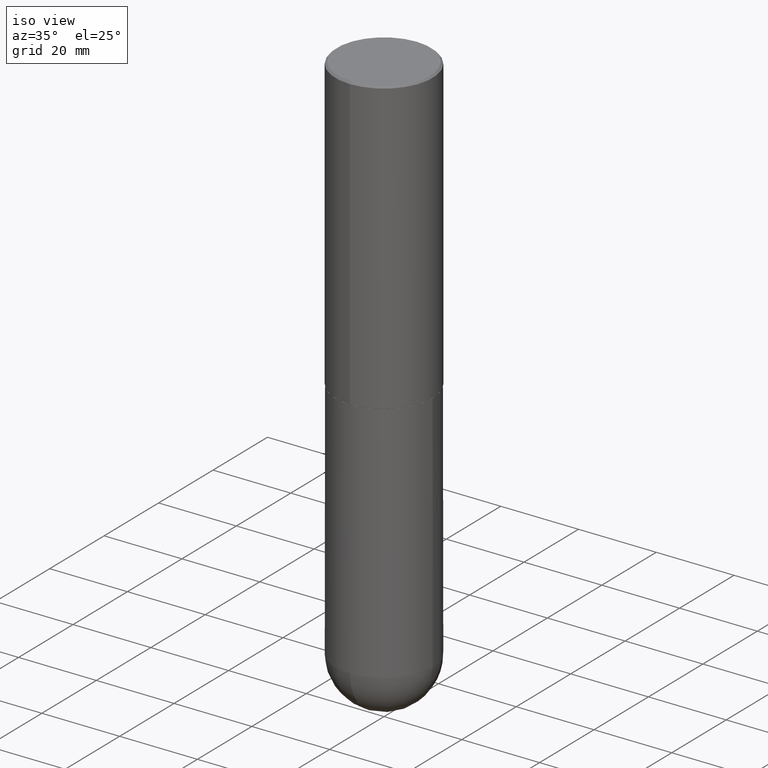
[diagram: clean part render]
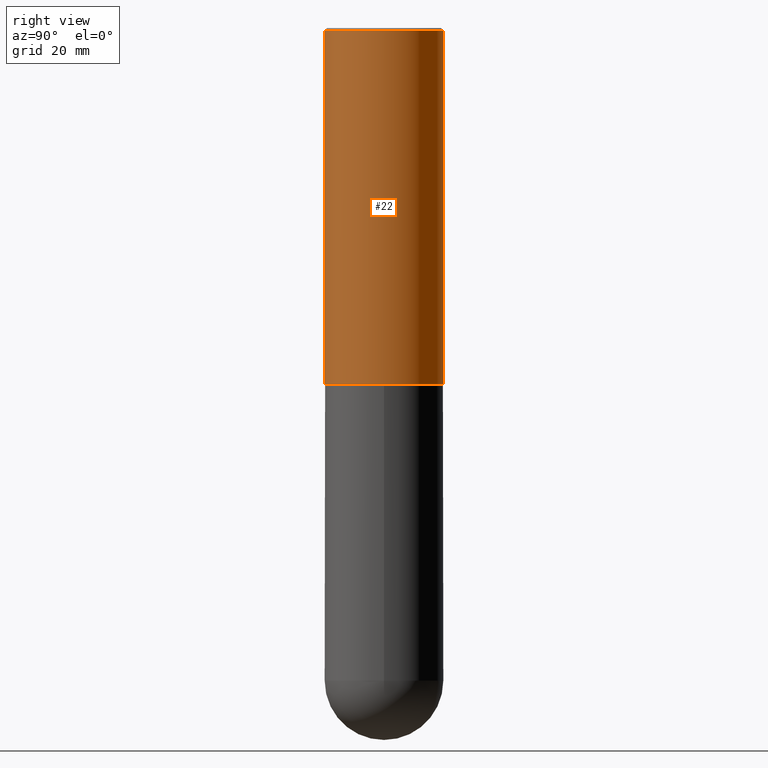
[diagram: tour spotlight — one face highlighted and labeled with its STEP entity id]
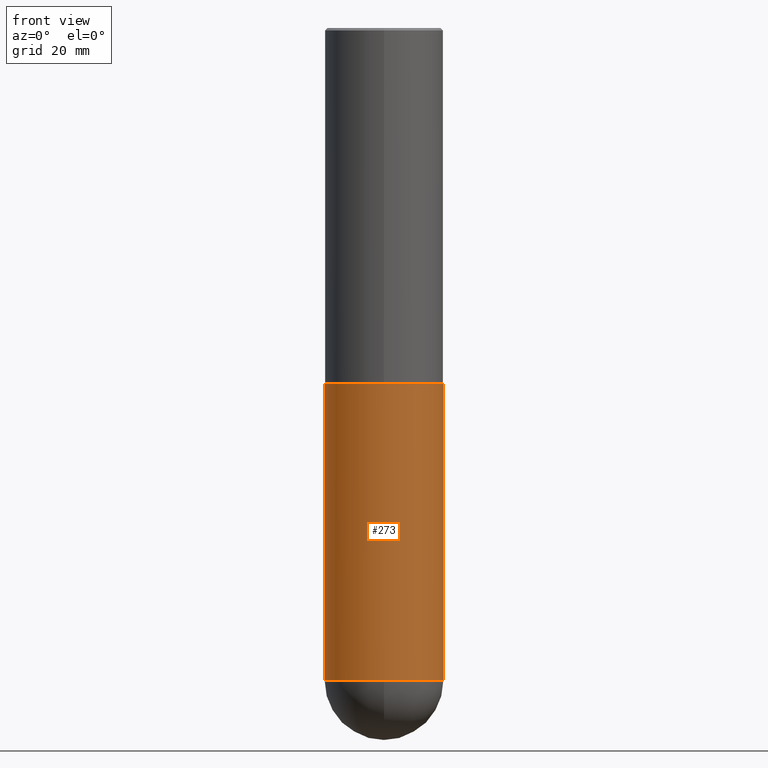
[diagram: tour spotlight — one face highlighted and labeled with its STEP entity id]
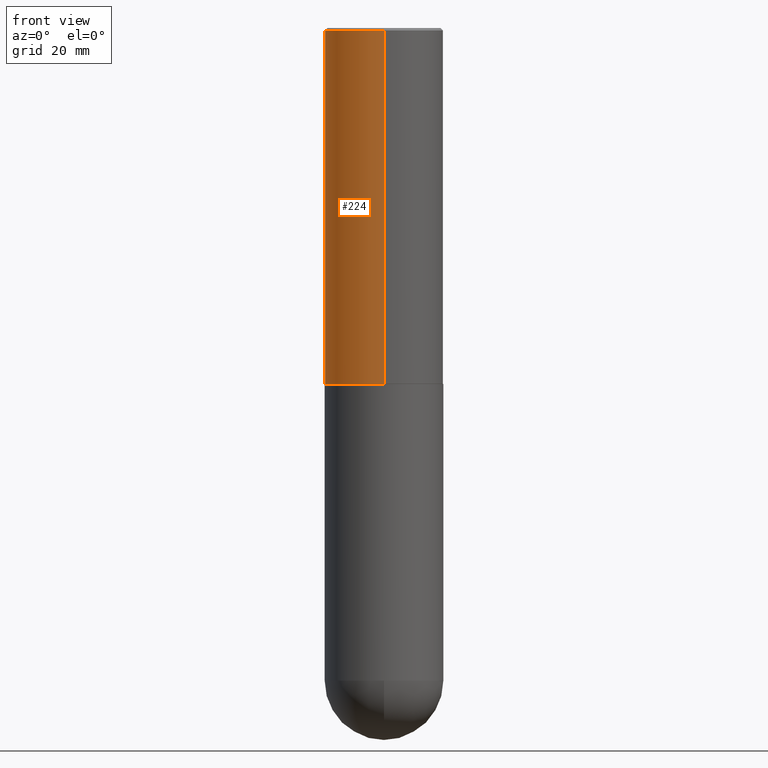
[diagram: tour spotlight — one face highlighted and labeled with its STEP entity id]
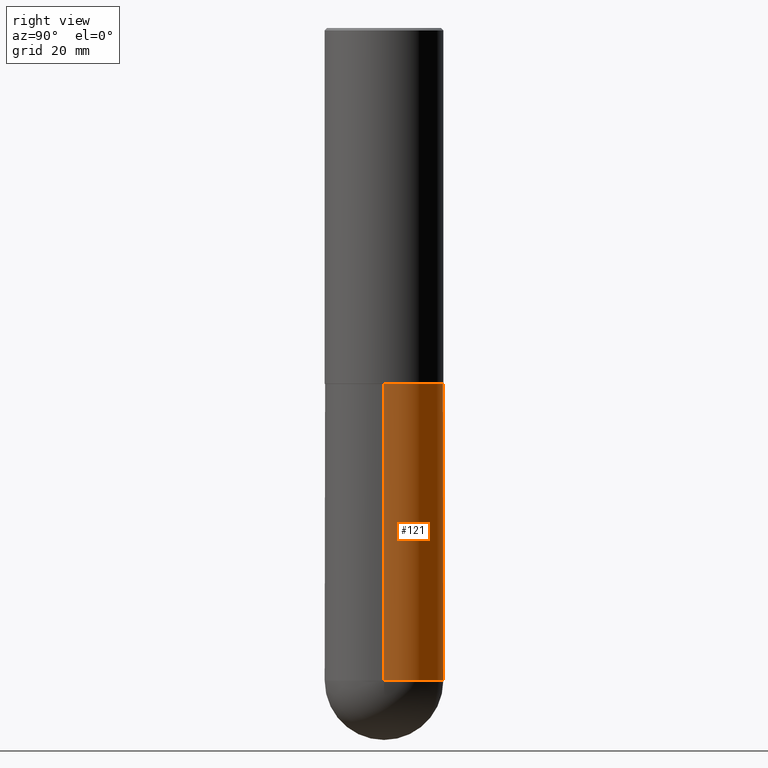
[diagram: tour spotlight — one face highlighted and labeled with its STEP entity id]
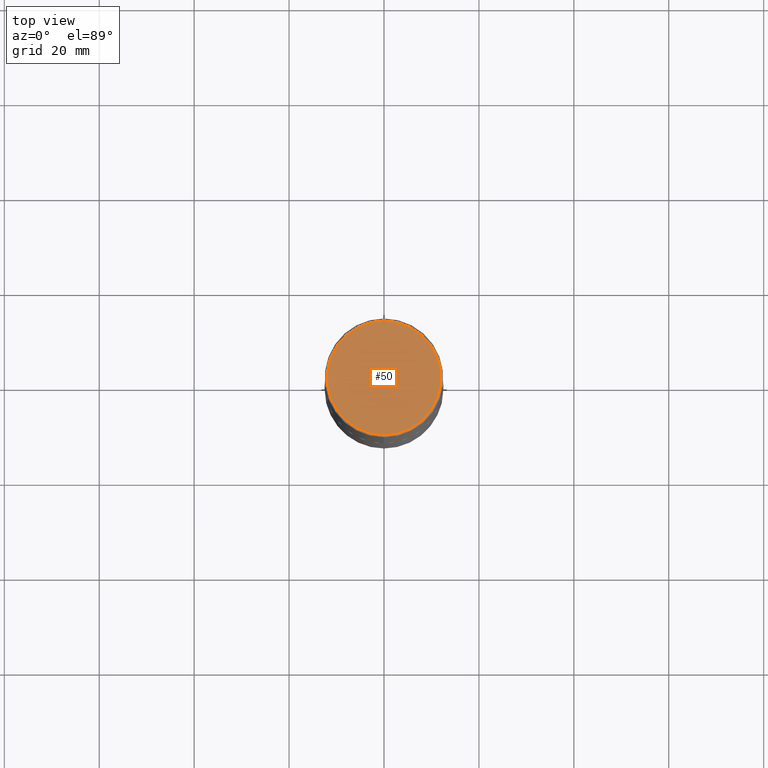
[diagram: tour spotlight — one face highlighted and labeled with its STEP entity id]
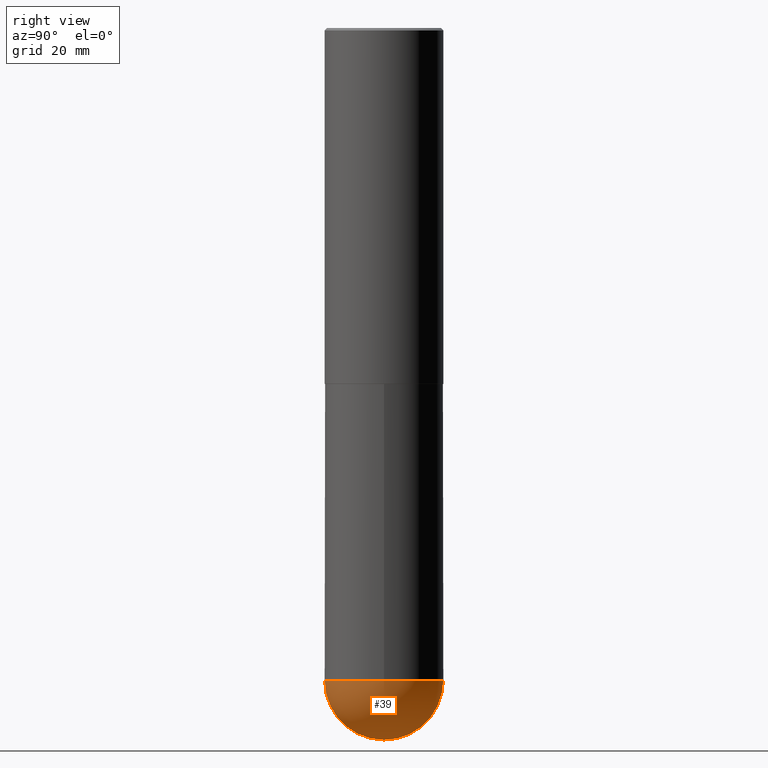
[diagram: tour spotlight — one face highlighted and labeled with its STEP entity id]
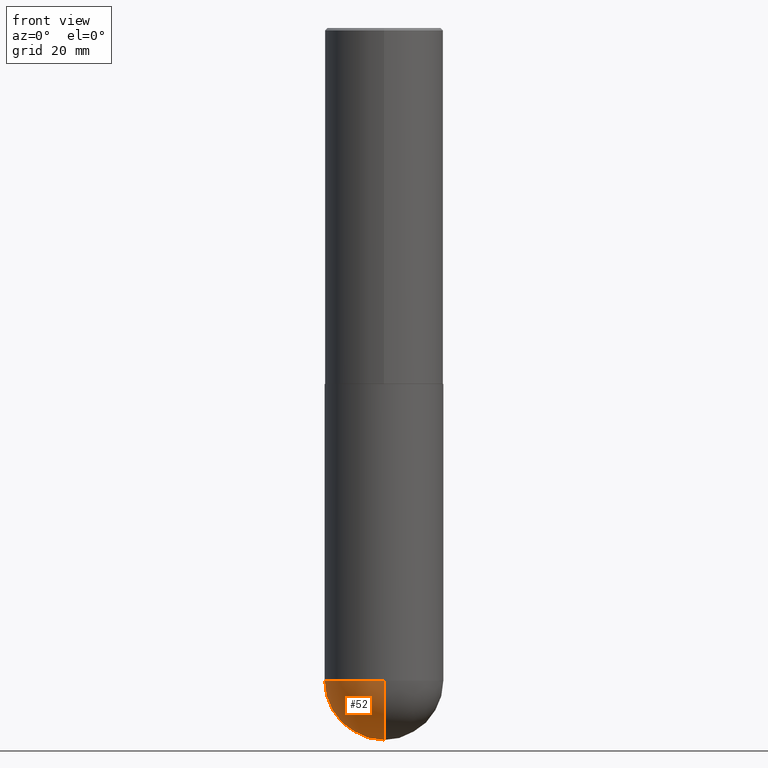
[diagram: tour spotlight — one face highlighted and labeled with its STEP entity id]
A machine part: a face-by-face anatomy tour. The part has 13 B-rep faces; the first image is the clean iso view, then the 7 largest visible faces are spotlighted one at a time (largest first), each with its STEP entity span.

Face 1 — right view, entity #22. In plain terms, the highlighted cylindrical surface (partial cylindrical patch) has radius 12.5006 mm, axis along (-0, 0, 1).
Definition (entity closure, byte-faithful):
#3 = VERTEX_POINT ( 'NONE', #152 ) ;
#7 = DIRECTION ( 'NONE',  ( -6.982962677686266711E-15, -1.000000000000000000, 3.491138808870824878E-15 ) ) ;
#18 = DIRECTION ( 'NONE',  ( -2.445707993586407338E-29, 3.491138808870824484E-15, 1.000000000000000000 ) ) ;
#22 = ADVANCED_FACE ( 'NONE', ( #286 ), #127, .T. ) ;
#63 = CARTESIAN_POINT ( 'NONE',  ( 3.496936074043371157E-15, 0.4921499999999900399, -2.951700000000001545 ) ) ;
#66 = VERTEX_POINT ( 'NONE', #398 ) ;
#72 = EDGE_LOOP ( 'NONE', ( #233, #349, #382, #85 ) ) ;
#78 = EDGE_CURVE ( 'NONE', #101, #66, #213, .T. ) ;
#81 = EDGE_CURVE ( 'NONE', #3, #101, #197, .T. ) ;
#85 = ORIENTED_EDGE ( 'NONE', *, *, #177, .F. ) ;
#87 = AXIS2_PLACEMENT_3D ( 'NONE', #167, #305, #403 ) ;
#101 = VERTEX_POINT ( 'NONE', #63 ) ;
#115 = AXIS2_PLACEMENT_3D ( 'NONE', #217, #157, #247 ) ;
#123 = DIRECTION ( 'NONE',  ( -2.445707993586407338E-29, 3.491138808870824484E-15, 1.000000000000000000 ) ) ;
#126 = LINE ( 'NONE', #226, #237 ) ;
#127 = CYLINDRICAL_SURFACE ( 'NONE', #158, 0.4921500000000001984 ) ;
#152 = CARTESIAN_POINT ( 'NONE',  ( -3.436665081823225568E-15, -0.4921500000000106345, -2.951699999999998436 ) ) ;
#157 = DIRECTION ( 'NONE',  ( -2.445707993586407058E-29, 3.491138808870824878E-15, 1.000000000000000000 ) ) ;
#158 = AXIS2_PLACEMENT_3D ( 'NONE', #252, #281, #7 ) ;
#167 = CARTESIAN_POINT ( 'NONE',  ( 4.891415987172841090E-31, -6.982277617741688262E-17, -0.02000000000000010797 ) ) ;
#177 = EDGE_CURVE ( 'NONE', #3, #212, #126, .T. ) ;
#197 = CIRCLE ( 'NONE', #115, 0.4921500000000003094 ) ;
#198 = CIRCLE ( 'NONE', #87, 0.4921500000000000319 ) ;
#212 = VERTEX_POINT ( 'NONE', #314 ) ;
#213 = LINE ( 'NONE', #250, #253 ) ;
#217 = CARTESIAN_POINT ( 'NONE',  ( 7.218996284668997343E-29, -1.030479442214401424E-14, -2.951700000000000212 ) ) ;
#226 = CARTESIAN_POINT ( 'NONE',  ( -3.436665081823297354E-15, -0.4921500000000001984, 1.718163964785777103E-15 ) ) ;
#233 = ORIENTED_EDGE ( 'NONE', *, *, #81, .T. ) ;
#237 = VECTOR ( 'NONE', #18, 39.37007874015748143 ) ;
#247 = DIRECTION ( 'NONE',  ( -6.982962677686265922E-15, -1.000000000000000000, 3.330506545156063891E-15 ) ) ;
#250 = CARTESIAN_POINT ( 'NONE',  ( 3.496936074043333686E-15, 0.4921500000000001984, -1.718163964785777103E-15 ) ) ;
#252 = CARTESIAN_POINT ( 'NONE',  ( 0.000000000000000000, 0.000000000000000000, 0.000000000000000000 ) ) ;
#253 = VECTOR ( 'NONE', #123, 39.37007874015748143 ) ;
#281 = DIRECTION ( 'NONE',  ( -2.445707993586407058E-29, 3.491138808870824878E-15, 1.000000000000000000 ) ) ;
#286 = FACE_OUTER_BOUND ( 'NONE', #72, .T. ) ;
#300 = EDGE_CURVE ( 'NONE', #212, #66, #198, .T. ) ;
#305 = DIRECTION ( 'NONE',  ( -2.445707993586407058E-29, 3.491138808870824878E-15, 1.000000000000000000 ) ) ;
#314 = CARTESIAN_POINT ( 'NONE',  ( -3.376394089603258656E-15, -0.4921500000000000874, -0.01999999999999838712 ) ) ;
#349 = ORIENTED_EDGE ( 'NONE', *, *, #78, .T. ) ;
#382 = ORIENTED_EDGE ( 'NONE', *, *, #300, .F. ) ;
#398 = CARTESIAN_POINT ( 'NONE',  ( 3.436665081823296565E-15, 0.4921499999999999764, -0.02000000000000182535 ) ) ;
#403 = DIRECTION ( 'NONE',  ( -6.982962677686265922E-15, -1.000000000000000000, 3.495297233588267070E-15 ) ) ;

Face 2 — front view, entity #273. In plain terms, the highlighted cylindrical surface (partial cylindrical patch) has radius 12.5006 mm, axis along (-0, 0, 1).
Definition (entity closure, byte-faithful):
#2 = AXIS2_PLACEMENT_3D ( 'NONE', #82, #268, #372 ) ;
#15 = DIRECTION ( 'NONE',  ( 1.000000000000000000, -6.982962677686265922E-15, 0.000000000000000000 ) ) ;
#17 = EDGE_CURVE ( 'NONE', #45, #161, #35, .T. ) ;
#35 = LINE ( 'NONE', #149, #404 ) ;
#38 = DIRECTION ( 'NONE',  ( -2.445468806185136877E-29, 3.491481338843145188E-15, 1.000000000000000000 ) ) ;
#43 = ORIENTED_EDGE ( 'NONE', *, *, #147, .F. ) ;
#45 = VERTEX_POINT ( 'NONE', #70 ) ;
#46 = CARTESIAN_POINT ( 'NONE',  ( 0.4921499999999999764, -1.374596203102545079E-14, -2.952700000000000102 ) ) ;
#51 = CYLINDRICAL_SURFACE ( 'NONE', #2, 0.4921499999999999764 ) ;
#69 = EDGE_LOOP ( 'NONE', ( #146, #328, #383, #377, #43 ) ) ;
#70 = CARTESIAN_POINT ( 'NONE',  ( -0.4921499999999999764, -1.110801765337101862E-14, -5.413349999999999440 ) ) ;
#82 = CARTESIAN_POINT ( 'NONE',  ( 0.000000000000000000, 0.000000000000000000, 0.000000000000000000 ) ) ;
#105 = CARTESIAN_POINT ( 'NONE',  ( 7.220735744022852519E-29, -1.030929694920215502E-14, -2.952700000000000102 ) ) ;
#110 = FACE_OUTER_BOUND ( 'NONE', #69, .T. ) ;
#113 = CARTESIAN_POINT ( 'NONE',  ( 1.323817856196230713E-28, -1.890061050562653856E-14, -5.413349999999999440 ) ) ;
#118 = CARTESIAN_POINT ( 'NONE',  ( 1.323817856196230713E-28, -1.890061050562653856E-14, -5.413349999999999440 ) ) ;
#143 = DIRECTION ( 'NONE',  ( 1.000000000000000000, -6.982962677686265922E-15, 0.000000000000000000 ) ) ;
#144 = DIRECTION ( 'NONE',  ( -2.445468806185136597E-29, 3.491481338843145583E-15, 1.000000000000000000 ) ) ;
#146 = ORIENTED_EDGE ( 'NONE', *, *, #17, .F. ) ;
#147 = EDGE_CURVE ( 'NONE', #161, #172, #387, .T. ) ;
#149 = CARTESIAN_POINT ( 'NONE',  ( -0.4921499999999999764, 3.496936074043332897E-15, -2.420853904668951509E-29 ) ) ;
#161 = VERTEX_POINT ( 'NONE', #223 ) ;
#172 = VERTEX_POINT ( 'NONE', #46 ) ;
#174 = CARTESIAN_POINT ( 'NONE',  ( 0.4921499999999999764, -1.804161880923764651E-14, -5.413349999999999440 ) ) ;
#182 = DIRECTION ( 'NONE',  ( -2.445468806185136597E-29, 3.491481338843145583E-15, 1.000000000000000000 ) ) ;
#203 = AXIS2_PLACEMENT_3D ( 'NONE', #105, #324, #15 ) ;
#223 = CARTESIAN_POINT ( 'NONE',  ( -0.4921499999999999764, -1.110801765337101547E-14, -2.952700000000000102 ) ) ;
#240 = EDGE_CURVE ( 'NONE', #246, #318, #270, .T. ) ;
#246 = VERTEX_POINT ( 'NONE', #316 ) ;
#263 = CIRCLE ( 'NONE', #307, 0.4921499999999999764 ) ;
#268 = DIRECTION ( 'NONE',  ( -2.445468806185136597E-29, 3.491481338843145583E-15, 1.000000000000000000 ) ) ;
#270 = CIRCLE ( 'NONE', #380, 0.4921499999999999764 ) ;
#273 = ADVANCED_FACE ( 'NONE', ( #110 ), #51, .T. ) ;
#276 = VECTOR ( 'NONE', #345, 39.37007874015748143 ) ;
#278 = DIRECTION ( 'NONE',  ( 1.000000000000000000, -6.982962677686265922E-15, 0.000000000000000000 ) ) ;
#306 = EDGE_CURVE ( 'NONE', #318, #172, #339, .T. ) ;
#307 = AXIS2_PLACEMENT_3D ( 'NONE', #118, #182, #143 ) ;
#316 = CARTESIAN_POINT ( 'NONE',  ( -3.496936074043201946E-15, -0.4921500000000192387, -5.413349999999997664 ) ) ;
#318 = VERTEX_POINT ( 'NONE', #174 ) ;
#320 = CARTESIAN_POINT ( 'NONE',  ( 0.4921499999999999764, -3.436665081823295777E-15, 2.399810400207969603E-29 ) ) ;
#324 = DIRECTION ( 'NONE',  ( -2.445468806185136597E-29, 3.491481338843145583E-15, 1.000000000000000000 ) ) ;
#328 = ORIENTED_EDGE ( 'NONE', *, *, #347, .T. ) ;
#339 = LINE ( 'NONE', #320, #276 ) ;
#345 = DIRECTION ( 'NONE',  ( -2.445468806185136877E-29, 3.491481338843145188E-15, 1.000000000000000000 ) ) ;
#347 = EDGE_CURVE ( 'NONE', #45, #246, #263, .T. ) ;
#372 = DIRECTION ( 'NONE',  ( 1.000000000000000000, -6.982962677686265922E-15, 4.876176775795935793E-29 ) ) ;
#377 = ORIENTED_EDGE ( 'NONE', *, *, #306, .T. ) ;
#380 = AXIS2_PLACEMENT_3D ( 'NONE', #113, #144, #278 ) ;
#383 = ORIENTED_EDGE ( 'NONE', *, *, #240, .T. ) ;
#387 = CIRCLE ( 'NONE', #203, 0.4921499999999999764 ) ;
#404 = VECTOR ( 'NONE', #38, 39.37007874015748143 ) ;

Face 3 — front view, entity #224. In plain terms, the highlighted cylindrical surface (partial cylindrical patch) has radius 12.5006 mm, axis along (-0, 0, 1).
Definition (entity closure, byte-faithful):
#3 = VERTEX_POINT ( 'NONE', #152 ) ;
#18 = DIRECTION ( 'NONE',  ( -2.445707993586407338E-29, 3.491138808870824484E-15, 1.000000000000000000 ) ) ;
#30 = AXIS2_PLACEMENT_3D ( 'NONE', #59, #34, #179 ) ;
#34 = DIRECTION ( 'NONE',  ( -2.445707993586407058E-29, 3.491138808870824878E-15, 1.000000000000000000 ) ) ;
#57 = CIRCLE ( 'NONE', #312, 0.4921500000000003094 ) ;
#59 = CARTESIAN_POINT ( 'NONE',  ( 4.891415987172841090E-31, -6.982277617741688262E-17, -0.02000000000000010797 ) ) ;
#63 = CARTESIAN_POINT ( 'NONE',  ( 3.496936074043371157E-15, 0.4921499999999900399, -2.951700000000001545 ) ) ;
#66 = VERTEX_POINT ( 'NONE', #398 ) ;
#78 = EDGE_CURVE ( 'NONE', #101, #66, #213, .T. ) ;
#96 = ORIENTED_EDGE ( 'NONE', *, *, #264, .F. ) ;
#101 = VERTEX_POINT ( 'NONE', #63 ) ;
#116 = DIRECTION ( 'NONE',  ( -6.982962677686266711E-15, -1.000000000000000000, 3.491138808870824878E-15 ) ) ;
#123 = DIRECTION ( 'NONE',  ( -2.445707993586407338E-29, 3.491138808870824484E-15, 1.000000000000000000 ) ) ;
#126 = LINE ( 'NONE', #226, #237 ) ;
#131 = ORIENTED_EDGE ( 'NONE', *, *, #177, .T. ) ;
#138 = AXIS2_PLACEMENT_3D ( 'NONE', #171, #309, #116 ) ;
#152 = CARTESIAN_POINT ( 'NONE',  ( -3.436665081823225568E-15, -0.4921500000000106345, -2.951699999999998436 ) ) ;
#171 = CARTESIAN_POINT ( 'NONE',  ( 0.000000000000000000, 0.000000000000000000, 0.000000000000000000 ) ) ;
#175 = ORIENTED_EDGE ( 'NONE', *, *, #78, .F. ) ;
#177 = EDGE_CURVE ( 'NONE', #3, #212, #126, .T. ) ;
#178 = EDGE_LOOP ( 'NONE', ( #175, #258, #131, #96 ) ) ;
#179 = DIRECTION ( 'NONE',  ( -6.982962677686265922E-15, -1.000000000000000000, 3.495297233588267070E-15 ) ) ;
#206 = FACE_OUTER_BOUND ( 'NONE', #178, .T. ) ;
#208 = CARTESIAN_POINT ( 'NONE',  ( 7.218996284668997343E-29, -1.030479442214401424E-14, -2.951700000000000212 ) ) ;
#212 = VERTEX_POINT ( 'NONE', #314 ) ;
#213 = LINE ( 'NONE', #250, #253 ) ;
#224 = ADVANCED_FACE ( 'NONE', ( #206 ), #408, .T. ) ;
#226 = CARTESIAN_POINT ( 'NONE',  ( -3.436665081823297354E-15, -0.4921500000000001984, 1.718163964785777103E-15 ) ) ;
#237 = VECTOR ( 'NONE', #18, 39.37007874015748143 ) ;
#250 = CARTESIAN_POINT ( 'NONE',  ( 3.496936074043333686E-15, 0.4921500000000001984, -1.718163964785777103E-15 ) ) ;
#253 = VECTOR ( 'NONE', #123, 39.37007874015748143 ) ;
#258 = ORIENTED_EDGE ( 'NONE', *, *, #311, .T. ) ;
#264 = EDGE_CURVE ( 'NONE', #66, #212, #331, .T. ) ;
#309 = DIRECTION ( 'NONE',  ( -2.445707993586407058E-29, 3.491138808870824878E-15, 1.000000000000000000 ) ) ;
#311 = EDGE_CURVE ( 'NONE', #101, #3, #57, .T. ) ;
#312 = AXIS2_PLACEMENT_3D ( 'NONE', #208, #348, #350 ) ;
#314 = CARTESIAN_POINT ( 'NONE',  ( -3.376394089603258656E-15, -0.4921500000000000874, -0.01999999999999838712 ) ) ;
#331 = CIRCLE ( 'NONE', #30, 0.4921500000000000319 ) ;
#348 = DIRECTION ( 'NONE',  ( -2.445707993586407058E-29, 3.491138808870824878E-15, 1.000000000000000000 ) ) ;
#350 = DIRECTION ( 'NONE',  ( -6.982962677686265922E-15, -1.000000000000000000, 3.330506545156063891E-15 ) ) ;
#398 = CARTESIAN_POINT ( 'NONE',  ( 3.436665081823296565E-15, 0.4921499999999999764, -0.02000000000000182535 ) ) ;
#408 = CYLINDRICAL_SURFACE ( 'NONE', #138, 0.4921500000000001984 ) ;

Face 4 — right view, entity #121. In plain terms, the highlighted cylindrical surface (partial cylindrical patch) has radius 12.5006 mm, axis along (-0, 0, 1).
Definition (entity closure, byte-faithful):
#17 = EDGE_CURVE ( 'NONE', #45, #161, #35, .T. ) ;
#23 = CARTESIAN_POINT ( 'NONE',  ( 1.323817856196230713E-28, -1.890061050562653856E-14, -5.413349999999999440 ) ) ;
#29 = ORIENTED_EDGE ( 'NONE', *, *, #17, .T. ) ;
#35 = LINE ( 'NONE', #149, #404 ) ;
#38 = DIRECTION ( 'NONE',  ( -2.445468806185136877E-29, 3.491481338843145188E-15, 1.000000000000000000 ) ) ;
#41 = VERTEX_POINT ( 'NONE', #390 ) ;
#45 = VERTEX_POINT ( 'NONE', #70 ) ;
#46 = CARTESIAN_POINT ( 'NONE',  ( 0.4921499999999999764, -1.374596203102545079E-14, -2.952700000000000102 ) ) ;
#56 = DIRECTION ( 'NONE',  ( 1.000000000000000000, -6.982962677686265922E-15, 0.000000000000000000 ) ) ;
#70 = CARTESIAN_POINT ( 'NONE',  ( -0.4921499999999999764, -1.110801765337101862E-14, -5.413349999999999440 ) ) ;
#83 = CIRCLE ( 'NONE', #321, 0.4921499999999999764 ) ;
#100 = CARTESIAN_POINT ( 'NONE',  ( 7.220735744022852519E-29, -1.030929694920215502E-14, -2.952700000000000102 ) ) ;
#114 = EDGE_CURVE ( 'NONE', #172, #161, #184, .T. ) ;
#117 = EDGE_CURVE ( 'NONE', #41, #45, #83, .T. ) ;
#121 = ADVANCED_FACE ( 'NONE', ( #327 ), #155, .T. ) ;
#132 = CARTESIAN_POINT ( 'NONE',  ( 0.000000000000000000, 0.000000000000000000, 0.000000000000000000 ) ) ;
#149 = CARTESIAN_POINT ( 'NONE',  ( -0.4921499999999999764, 3.496936074043332897E-15, -2.420853904668951509E-29 ) ) ;
#150 = AXIS2_PLACEMENT_3D ( 'NONE', #100, #193, #329 ) ;
#155 = CYLINDRICAL_SURFACE ( 'NONE', #216, 0.4921499999999999764 ) ;
#161 = VERTEX_POINT ( 'NONE', #223 ) ;
#169 = DIRECTION ( 'NONE',  ( -2.445468806185136597E-29, 3.491481338843145583E-15, 1.000000000000000000 ) ) ;
#172 = VERTEX_POINT ( 'NONE', #46 ) ;
#174 = CARTESIAN_POINT ( 'NONE',  ( 0.4921499999999999764, -1.804161880923764651E-14, -5.413349999999999440 ) ) ;
#183 = EDGE_LOOP ( 'NONE', ( #214, #29, #195, #354, #207 ) ) ;
#184 = CIRCLE ( 'NONE', #150, 0.4921499999999999764 ) ;
#193 = DIRECTION ( 'NONE',  ( -2.445468806185136597E-29, 3.491481338843145583E-15, 1.000000000000000000 ) ) ;
#195 = ORIENTED_EDGE ( 'NONE', *, *, #114, .F. ) ;
#207 = ORIENTED_EDGE ( 'NONE', *, *, #279, .T. ) ;
#214 = ORIENTED_EDGE ( 'NONE', *, *, #117, .T. ) ;
#216 = AXIS2_PLACEMENT_3D ( 'NONE', #132, #289, #256 ) ;
#223 = CARTESIAN_POINT ( 'NONE',  ( -0.4921499999999999764, -1.110801765337101547E-14, -2.952700000000000102 ) ) ;
#244 = CIRCLE ( 'NONE', #255, 0.4921499999999999764 ) ;
#255 = AXIS2_PLACEMENT_3D ( 'NONE', #23, #169, #56 ) ;
#256 = DIRECTION ( 'NONE',  ( 1.000000000000000000, -6.982962677686265922E-15, 4.876176775795935793E-29 ) ) ;
#261 = DIRECTION ( 'NONE',  ( 1.000000000000000000, -6.982962677686265922E-15, 0.000000000000000000 ) ) ;
#276 = VECTOR ( 'NONE', #345, 39.37007874015748143 ) ;
#279 = EDGE_CURVE ( 'NONE', #318, #41, #244, .T. ) ;
#289 = DIRECTION ( 'NONE',  ( -2.445468806185136597E-29, 3.491481338843145583E-15, 1.000000000000000000 ) ) ;
#306 = EDGE_CURVE ( 'NONE', #318, #172, #339, .T. ) ;
#318 = VERTEX_POINT ( 'NONE', #174 ) ;
#320 = CARTESIAN_POINT ( 'NONE',  ( 0.4921499999999999764, -3.436665081823295777E-15, 2.399810400207969603E-29 ) ) ;
#321 = AXIS2_PLACEMENT_3D ( 'NONE', #352, #364, #261 ) ;
#327 = FACE_OUTER_BOUND ( 'NONE', #183, .T. ) ;
#329 = DIRECTION ( 'NONE',  ( 1.000000000000000000, -6.982962677686265922E-15, 0.000000000000000000 ) ) ;
#339 = LINE ( 'NONE', #320, #276 ) ;
#345 = DIRECTION ( 'NONE',  ( -2.445468806185136877E-29, 3.491481338843145188E-15, 1.000000000000000000 ) ) ;
#352 = CARTESIAN_POINT ( 'NONE',  ( 1.323817856196230713E-28, -1.890061050562653856E-14, -5.413349999999999440 ) ) ;
#354 = ORIENTED_EDGE ( 'NONE', *, *, #306, .F. ) ;
#364 = DIRECTION ( 'NONE',  ( -2.445468806185136597E-29, 3.491481338843145583E-15, 1.000000000000000000 ) ) ;
#390 = CARTESIAN_POINT ( 'NONE',  ( 3.436665081823426728E-15, 0.4921499999999808250, -5.413350000000002105 ) ) ;
#404 = VECTOR ( 'NONE', #38, 39.37007874015748143 ) ;

Face 5 — top view, entity #50. In plain terms, the highlighted planar face has unit normal (0, -0, -1).
Definition (entity closure, byte-faithful):
#4 = CARTESIAN_POINT ( 'NONE',  ( 3.297005828269569180E-15, 0.4721499999999997921, -1.531037957893813463E-15 ) ) ;
#11 = ORIENTED_EDGE ( 'NONE', *, *, #340, .T. ) ;
#33 = CARTESIAN_POINT ( 'NONE',  ( -5.737788980641500358E-45, 8.190437223069574887E-31, 2.346064614290914687E-16 ) ) ;
#36 = EDGE_CURVE ( 'NONE', #351, #292, #227, .T. ) ;
#44 = PLANE ( 'NONE',  #141 ) ;
#50 = ADVANCED_FACE ( 'NONE', ( #76 ), #44, .F. ) ;
#54 = ORIENTED_EDGE ( 'NONE', *, *, #36, .T. ) ;
#76 = FACE_OUTER_BOUND ( 'NONE', #358, .T. ) ;
#88 = DIRECTION ( 'NONE',  ( -6.982962677686265922E-15, -1.000000000000000000, 3.491138808870824878E-15 ) ) ;
#95 = CARTESIAN_POINT ( 'NONE',  ( 3.366835455046432873E-15, 0.4721499999999997921, -1.413734727179267828E-15 ) ) ;
#133 = DIRECTION ( 'NONE',  ( -6.982962677686265922E-15, -1.000000000000000000, 3.491138808870824878E-15 ) ) ;
#135 = AXIS2_PLACEMENT_3D ( 'NONE', #260, #397, #133 ) ;
#141 = AXIS2_PLACEMENT_3D ( 'NONE', #4, #162, #333 ) ;
#162 = DIRECTION ( 'NONE',  ( 2.445707993586407058E-29, -3.491138808870824484E-15, -1.000000000000000000 ) ) ;
#180 = DIRECTION ( 'NONE',  ( -2.445707993586407058E-29, 3.491138808870824878E-15, 1.000000000000000000 ) ) ;
#227 = CIRCLE ( 'NONE', #135, 0.4721499999999997921 ) ;
#234 = CARTESIAN_POINT ( 'NONE',  ( -3.307789109625542536E-15, -0.4721499999999997921, 1.882947650037450765E-15 ) ) ;
#260 = CARTESIAN_POINT ( 'NONE',  ( -5.737788980641500358E-45, 8.190437223069574887E-31, 2.346064614290914687E-16 ) ) ;
#292 = VERTEX_POINT ( 'NONE', #234 ) ;
#294 = AXIS2_PLACEMENT_3D ( 'NONE', #33, #180, #88 ) ;
#333 = DIRECTION ( 'NONE',  ( 6.982962677686265922E-15, 1.000000000000000000, -3.491138808870824484E-15 ) ) ;
#340 = EDGE_CURVE ( 'NONE', #292, #351, #369, .T. ) ;
#351 = VERTEX_POINT ( 'NONE', #95 ) ;
#358 = EDGE_LOOP ( 'NONE', ( #54, #11 ) ) ;
#369 = CIRCLE ( 'NONE', #294, 0.4721499999999997921 ) ;
#397 = DIRECTION ( 'NONE',  ( -2.445707993586407058E-29, 3.491138808870824878E-15, 1.000000000000000000 ) ) ;

Face 6 — right view, entity #39. In plain terms, the highlighted spherical surface has radius 12.5006 mm.
Definition (entity closure, byte-faithful):
#5 = EDGE_CURVE ( 'NONE', #62, #41, #293, .T. ) ;
#23 = CARTESIAN_POINT ( 'NONE',  ( 1.323817856196230713E-28, -1.890061050562653856E-14, -5.413349999999999440 ) ) ;
#39 = ADVANCED_FACE ( 'NONE', ( #190 ), #259, .T. ) ;
#41 = VERTEX_POINT ( 'NONE', #390 ) ;
#56 = DIRECTION ( 'NONE',  ( 1.000000000000000000, -6.982962677686265922E-15, 0.000000000000000000 ) ) ;
#62 = VERTEX_POINT ( 'NONE', #187 ) ;
#74 = AXIS2_PLACEMENT_3D ( 'NONE', #295, #200, #134 ) ;
#86 = AXIS2_PLACEMENT_3D ( 'NONE', #243, #322, #326 ) ;
#92 = ORIENTED_EDGE ( 'NONE', *, *, #240, .F. ) ;
#113 = CARTESIAN_POINT ( 'NONE',  ( 1.323817856196230713E-28, -1.890061050562653856E-14, -5.413349999999999440 ) ) ;
#134 = DIRECTION ( 'NONE',  ( 6.982962677686266711E-15, 1.000000000000000000, -4.440675393541420887E-15 ) ) ;
#144 = DIRECTION ( 'NONE',  ( -2.445468806185136597E-29, 3.491481338843145583E-15, 1.000000000000000000 ) ) ;
#169 = DIRECTION ( 'NONE',  ( -2.445468806185136597E-29, 3.491481338843145583E-15, 1.000000000000000000 ) ) ;
#174 = CARTESIAN_POINT ( 'NONE',  ( 0.4921499999999999764, -1.804161880923764651E-14, -5.413349999999999440 ) ) ;
#187 = CARTESIAN_POINT ( 'NONE',  ( 1.413163976147341948E-28, -2.106298991856822883E-14, -5.905499999999999972 ) ) ;
#188 = DIRECTION ( 'NONE',  ( -7.105427357601001070E-15, -1.000000000000000000, 0.000000000000000000 ) ) ;
#190 = FACE_OUTER_BOUND ( 'NONE', #313, .T. ) ;
#200 = DIRECTION ( 'NONE',  ( -1.000000000000000000, 6.982962677686266711E-15, -4.883557194083112901E-29 ) ) ;
#240 = EDGE_CURVE ( 'NONE', #246, #318, #270, .T. ) ;
#243 = CARTESIAN_POINT ( 'NONE',  ( 1.290705878404842200E-28, -1.937479287376659043E-14, -5.413349999999999440 ) ) ;
#244 = CIRCLE ( 'NONE', #255, 0.4921499999999999764 ) ;
#246 = VERTEX_POINT ( 'NONE', #316 ) ;
#248 = DIRECTION ( 'NONE',  ( -1.000000000000000000, 7.105427357601001070E-15, -4.926315508542082329E-29 ) ) ;
#255 = AXIS2_PLACEMENT_3D ( 'NONE', #23, #169, #56 ) ;
#259 = SPHERICAL_SURFACE ( 'NONE', #74, 0.4921500000000000874 ) ;
#270 = CIRCLE ( 'NONE', #380, 0.4921499999999999764 ) ;
#278 = DIRECTION ( 'NONE',  ( 1.000000000000000000, -6.982962677686265922E-15, 0.000000000000000000 ) ) ;
#279 = EDGE_CURVE ( 'NONE', #318, #41, #244, .T. ) ;
#288 = ORIENTED_EDGE ( 'NONE', *, *, #279, .F. ) ;
#293 = CIRCLE ( 'NONE', #86, 0.4921500000000000874 ) ;
#295 = CARTESIAN_POINT ( 'NONE',  ( 1.290705878404842200E-28, -1.937479287376659043E-14, -5.413349999999999440 ) ) ;
#308 = ORIENTED_EDGE ( 'NONE', *, *, #5, .T. ) ;
#313 = EDGE_LOOP ( 'NONE', ( #392, #308, #288, #92 ) ) ;
#316 = CARTESIAN_POINT ( 'NONE',  ( -3.496936074043201946E-15, -0.4921500000000192387, -5.413349999999997664 ) ) ;
#318 = VERTEX_POINT ( 'NONE', #174 ) ;
#322 = DIRECTION ( 'NONE',  ( 1.000000000000000000, -6.982962677686265922E-15, 4.883557194083112340E-29 ) ) ;
#323 = AXIS2_PLACEMENT_3D ( 'NONE', #353, #248, #188 ) ;
#326 = DIRECTION ( 'NONE',  ( 6.982962677686265922E-15, 1.000000000000000000, 0.000000000000000000 ) ) ;
#353 = CARTESIAN_POINT ( 'NONE',  ( 1.290705878404842200E-28, -1.937479287376659043E-14, -5.413349999999999440 ) ) ;
#355 = EDGE_CURVE ( 'NONE', #62, #246, #409, .T. ) ;
#380 = AXIS2_PLACEMENT_3D ( 'NONE', #113, #144, #278 ) ;
#390 = CARTESIAN_POINT ( 'NONE',  ( 3.436665081823426728E-15, 0.4921499999999808250, -5.413350000000002105 ) ) ;
#392 = ORIENTED_EDGE ( 'NONE', *, *, #355, .F. ) ;
#409 = CIRCLE ( 'NONE', #323, 0.4921500000000000874 ) ;

Face 7 — front view, entity #52. In plain terms, the highlighted spherical surface has radius 12.5006 mm.
Definition (entity closure, byte-faithful):
#5 = EDGE_CURVE ( 'NONE', #62, #41, #293, .T. ) ;
#8 = CARTESIAN_POINT ( 'NONE',  ( 1.290705878404842200E-28, -1.937479287376659043E-14, -5.413349999999999440 ) ) ;
#41 = VERTEX_POINT ( 'NONE', #390 ) ;
#45 = VERTEX_POINT ( 'NONE', #70 ) ;
#52 = ADVANCED_FACE ( 'NONE', ( #73 ), #393, .T. ) ;
#62 = VERTEX_POINT ( 'NONE', #187 ) ;
#70 = CARTESIAN_POINT ( 'NONE',  ( -0.4921499999999999764, -1.110801765337101862E-14, -5.413349999999999440 ) ) ;
#73 = FACE_OUTER_BOUND ( 'NONE', #210, .T. ) ;
#83 = CIRCLE ( 'NONE', #321, 0.4921499999999999764 ) ;
#86 = AXIS2_PLACEMENT_3D ( 'NONE', #243, #322, #326 ) ;
#94 = DIRECTION ( 'NONE',  ( 6.982962677686266711E-15, 1.000000000000000000, -4.440675393541420887E-15 ) ) ;
#117 = EDGE_CURVE ( 'NONE', #41, #45, #83, .T. ) ;
#118 = CARTESIAN_POINT ( 'NONE',  ( 1.323817856196230713E-28, -1.890061050562653856E-14, -5.413349999999999440 ) ) ;
#143 = DIRECTION ( 'NONE',  ( 1.000000000000000000, -6.982962677686265922E-15, 0.000000000000000000 ) ) ;
#156 = ORIENTED_EDGE ( 'NONE', *, *, #117, .F. ) ;
#181 = ORIENTED_EDGE ( 'NONE', *, *, #355, .T. ) ;
#182 = DIRECTION ( 'NONE',  ( -2.445468806185136597E-29, 3.491481338843145583E-15, 1.000000000000000000 ) ) ;
#187 = CARTESIAN_POINT ( 'NONE',  ( 1.413163976147341948E-28, -2.106298991856822883E-14, -5.905499999999999972 ) ) ;
#188 = DIRECTION ( 'NONE',  ( -7.105427357601001070E-15, -1.000000000000000000, 0.000000000000000000 ) ) ;
#192 = ORIENTED_EDGE ( 'NONE', *, *, #5, .F. ) ;
#210 = EDGE_LOOP ( 'NONE', ( #192, #181, #388, #156 ) ) ;
#243 = CARTESIAN_POINT ( 'NONE',  ( 1.290705878404842200E-28, -1.937479287376659043E-14, -5.413349999999999440 ) ) ;
#246 = VERTEX_POINT ( 'NONE', #316 ) ;
#248 = DIRECTION ( 'NONE',  ( -1.000000000000000000, 7.105427357601001070E-15, -4.926315508542082329E-29 ) ) ;
#261 = DIRECTION ( 'NONE',  ( 1.000000000000000000, -6.982962677686265922E-15, 0.000000000000000000 ) ) ;
#262 = AXIS2_PLACEMENT_3D ( 'NONE', #8, #359, #94 ) ;
#263 = CIRCLE ( 'NONE', #307, 0.4921499999999999764 ) ;
#293 = CIRCLE ( 'NONE', #86, 0.4921500000000000874 ) ;
#307 = AXIS2_PLACEMENT_3D ( 'NONE', #118, #182, #143 ) ;
#316 = CARTESIAN_POINT ( 'NONE',  ( -3.496936074043201946E-15, -0.4921500000000192387, -5.413349999999997664 ) ) ;
#321 = AXIS2_PLACEMENT_3D ( 'NONE', #352, #364, #261 ) ;
#322 = DIRECTION ( 'NONE',  ( 1.000000000000000000, -6.982962677686265922E-15, 4.883557194083112340E-29 ) ) ;
#323 = AXIS2_PLACEMENT_3D ( 'NONE', #353, #248, #188 ) ;
#326 = DIRECTION ( 'NONE',  ( 6.982962677686265922E-15, 1.000000000000000000, 0.000000000000000000 ) ) ;
#347 = EDGE_CURVE ( 'NONE', #45, #246, #263, .T. ) ;
#352 = CARTESIAN_POINT ( 'NONE',  ( 1.323817856196230713E-28, -1.890061050562653856E-14, -5.413349999999999440 ) ) ;
#353 = CARTESIAN_POINT ( 'NONE',  ( 1.290705878404842200E-28, -1.937479287376659043E-14, -5.413349999999999440 ) ) ;
#355 = EDGE_CURVE ( 'NONE', #62, #246, #409, .T. ) ;
#359 = DIRECTION ( 'NONE',  ( -1.000000000000000000, 6.982962677686266711E-15, -4.883557194083112901E-29 ) ) ;
#364 = DIRECTION ( 'NONE',  ( -2.445468806185136597E-29, 3.491481338843145583E-15, 1.000000000000000000 ) ) ;
#388 = ORIENTED_EDGE ( 'NONE', *, *, #347, .F. ) ;
#390 = CARTESIAN_POINT ( 'NONE',  ( 3.436665081823426728E-15, 0.4921499999999808250, -5.413350000000002105 ) ) ;
#393 = SPHERICAL_SURFACE ( 'NONE', #262, 0.4921500000000000874 ) ;
#409 = CIRCLE ( 'NONE', #323, 0.4921500000000000874 ) ;